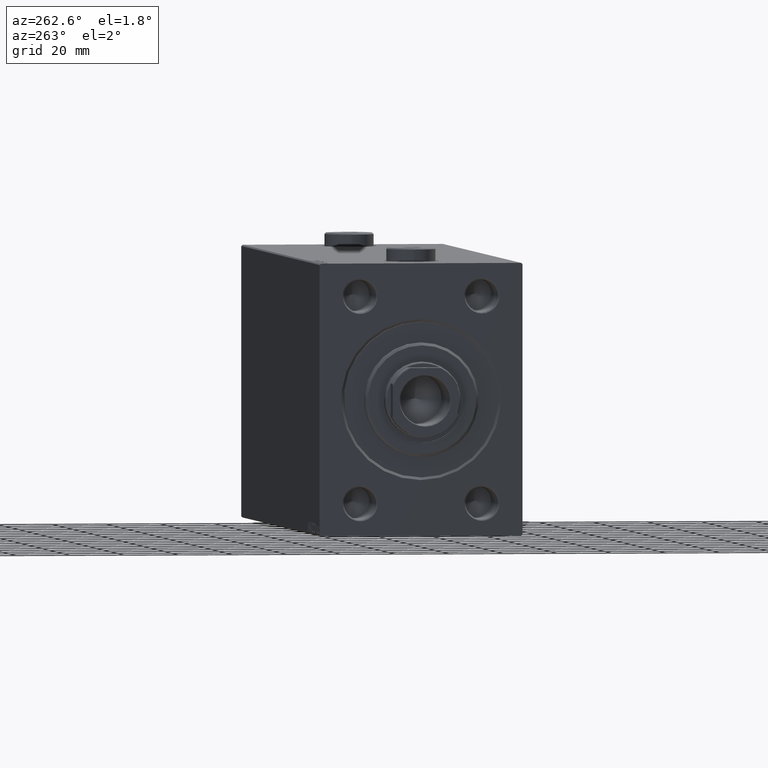
[diagram: clean part render]
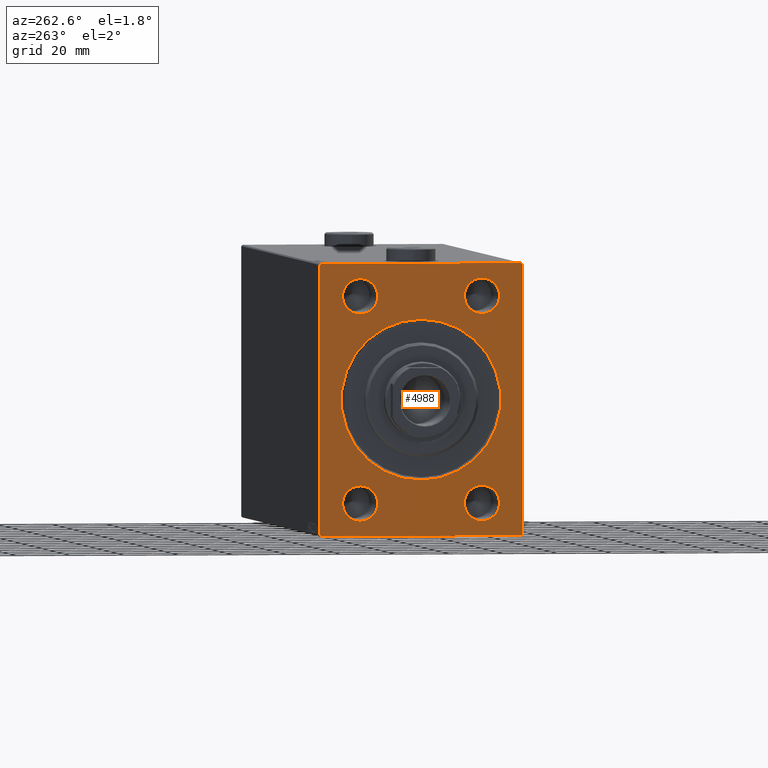
[diagram: same view with one face highlighted and labeled with its STEP entity id]
A machine part, auxiliary view. The second image highlights one B-rep face of the part: STEP entity #4988.
In plain terms, the highlighted planar face has unit normal (1, 0, 0).
Its self-contained STEP definition (entity closure, byte-faithful):
#17 = AXIS2_PLACEMENT_3D ( 'NONE', #35885, #303, #14851 ) ;
#303 = DIRECTION ( 'NONE',  ( 1.000000000000000000, 0.000000000000000000, 0.000000000000000000 ) ) ;
#393 = VERTEX_POINT ( 'NONE', #19849 ) ;
#1120 = DIRECTION ( 'NONE',  ( 0.000000000000000000, 0.000000000000000000, -1.000000000000000000 ) ) ;
#1702 = LINE ( 'NONE', #5158, #45080 ) ;
#1953 = EDGE_CURVE ( 'NONE', #20984, #36791, #40335, .T. ) ;
#2407 = DIRECTION ( 'NONE',  ( 1.000000000000000000, 0.000000000000000000, 0.000000000000000000 ) ) ;
#2893 = CARTESIAN_POINT ( 'NONE',  ( 0.000000000000000000, 37.50000000000000711, -50.00000000000000000 ) ) ;
#2942 = FACE_BOUND ( 'NONE', #19916, .T. ) ;
#2968 = ORIENTED_EDGE ( 'NONE', *, *, #3839, .T. ) ;
#3392 = EDGE_CURVE ( 'NONE', #393, #26474, #37035, .T. ) ;
#3839 = EDGE_CURVE ( 'NONE', #43464, #7391, #30057, .T. ) ;
#3849 = VECTOR ( 'NONE', #31752, 1000.000000000000000 ) ;
#3899 = ORIENTED_EDGE ( 'NONE', *, *, #13125, .T. ) ;
#4307 = CARTESIAN_POINT ( 'NONE',  ( 0.000000000000000000, 0.000000000000000000, 0.000000000000000000 ) ) ;
#4359 = ORIENTED_EDGE ( 'NONE', *, *, #5771, .T. ) ;
#4742 = ORIENTED_EDGE ( 'NONE', *, *, #17010, .F. ) ;
#4839 = CIRCLE ( 'NONE', #15165, 6.500000000000005329 ) ;
#4838 = CARTESIAN_POINT ( 'NONE',  ( 0.000000000000000000, -22.50000000000000000, -44.50000000000001421 ) ) ;
#4844 = VERTEX_POINT ( 'NONE', #43860 ) ;
#4988 = ADVANCED_FACE ( 'NONE', ( #2942, #38068, #41535, #37847, #20287, #31128 ), #13353, .F. ) ;
#5003 = DIRECTION ( 'NONE',  ( 1.000000000000000000, 0.000000000000000000, 0.000000000000000000 ) ) ;
#5158 = CARTESIAN_POINT ( 'NONE',  ( 0.000000000000000000, 37.49999999999999289, 50.00000000000000711 ) ) ;
#5771 = EDGE_CURVE ( 'NONE', #26792, #11224, #28955, .T. ) ;
#6187 = DIRECTION ( 'NONE',  ( 0.000000000000000000, 0.000000000000000000, -1.000000000000000000 ) ) ;
#6314 = EDGE_LOOP ( 'NONE', ( #3899, #39411 ) ) ;
#6409 = CARTESIAN_POINT ( 'NONE',  ( 0.000000000000000000, 0.000000000000000000, 0.000000000000000000 ) ) ;
#6519 = DIRECTION ( 'NONE',  ( 0.000000000000000000, 0.000000000000000000, -1.000000000000000000 ) ) ;
#6733 = CARTESIAN_POINT ( 'NONE',  ( 0.000000000000000000, 22.50000000000000000, 31.49999999999998579 ) ) ;
#6905 = VECTOR ( 'NONE', #11811, 1000.000000000000000 ) ;
#7391 = VERTEX_POINT ( 'NONE', #14429 ) ;
#7405 = CIRCLE ( 'NONE', #17, 29.50000000000000355 ) ;
#9954 = ORIENTED_EDGE ( 'NONE', *, *, #17718, .T. ) ;
#10482 = DIRECTION ( 'NONE',  ( -0.000000000000000000, -0.7071067811865474617, 0.7071067811865474617 ) ) ;
#10502 = AXIS2_PLACEMENT_3D ( 'NONE', #38619, #27110, #23867 ) ;
#11037 = CARTESIAN_POINT ( 'NONE',  ( 0.000000000000000000, -22.50000000000000000, -38.00000000000000711 ) ) ;
#11224 = VERTEX_POINT ( 'NONE', #33646 ) ;
#11742 = CARTESIAN_POINT ( 'NONE',  ( 0.000000000000000000, -22.50000000000000000, 37.99999999999999289 ) ) ;
#11811 = DIRECTION ( 'NONE',  ( -0.000000000000000000, 0.7071067811865328068, 0.7071067811865622277 ) ) ;
#12537 = DIRECTION ( 'NONE',  ( 0.000000000000000000, 0.000000000000000000, -1.000000000000000000 ) ) ;
#13051 = LINE ( 'NONE', #37995, #18236 ) ;
#13125 = EDGE_CURVE ( 'NONE', #4844, #34224, #27250, .T. ) ;
#13353 = PLANE ( 'NONE',  #24929 ) ;
#13674 = AXIS2_PLACEMENT_3D ( 'NONE', #37982, #2407, #17180 ) ;
#13740 = LINE ( 'NONE', #2893, #3849 ) ;
#14427 = CARTESIAN_POINT ( 'NONE',  ( 0.000000000000000000, 3.612708057484691604E-15, -29.50000000000000355 ) ) ;
#14429 = CARTESIAN_POINT ( 'NONE',  ( 0.000000000000000000, -22.50000000000000000, 44.50000000000000000 ) ) ;
#14703 = DIRECTION ( 'NONE',  ( 0.000000000000000000, 1.000000000000000000, 0.000000000000000000 ) ) ;
#14758 = DIRECTION ( 'NONE',  ( 1.000000000000000000, 0.000000000000000000, 0.000000000000000000 ) ) ;
#14765 = CARTESIAN_POINT ( 'NONE',  ( 0.000000000000000000, -37.00000000000002842, -50.00000000000000000 ) ) ;
#14851 = DIRECTION ( 'NONE',  ( 0.000000000000000000, 0.000000000000000000, -1.000000000000000000 ) ) ;
#15165 = AXIS2_PLACEMENT_3D ( 'NONE', #31233, #24745, #6519 ) ;
#15174 = DIRECTION ( 'NONE',  ( 0.000000000000000000, 0.000000000000000000, -1.000000000000000000 ) ) ;
#15596 = CARTESIAN_POINT ( 'NONE',  ( 0.000000000000000000, 37.00000000000002132, 50.00000000000000711 ) ) ;
#15679 = ORIENTED_EDGE ( 'NONE', *, *, #29551, .T. ) ;
#15725 = EDGE_CURVE ( 'NONE', #41195, #17801, #7405, .T. ) ;
#15777 = CARTESIAN_POINT ( 'NONE',  ( 0.000000000000000000, 37.00000000000002132, 50.00000000000000711 ) ) ;
#15954 = AXIS2_PLACEMENT_3D ( 'NONE', #27967, #45530, #41846 ) ;
#16177 = CARTESIAN_POINT ( 'NONE',  ( 0.000000000000000000, 22.50000000000000000, -44.50000000000001421 ) ) ;
#16243 = DIRECTION ( 'NONE',  ( 0.000000000000000000, -1.000000000000000000, -2.775557561562891844E-16 ) ) ;
#16643 = EDGE_CURVE ( 'NONE', #18517, #41503, #38733, .T. ) ;
#16743 = DIRECTION ( 'NONE',  ( 0.000000000000000000, -0.7071067811865524577, -0.7071067811865426878 ) ) ;
#16798 = EDGE_LOOP ( 'NONE', ( #29836, #42025 ) ) ;
#17010 = EDGE_CURVE ( 'NONE', #26792, #36350, #1702, .T. ) ;
#17180 = DIRECTION ( 'NONE',  ( 0.000000000000000000, 0.000000000000000000, -1.000000000000000000 ) ) ;
#17718 = EDGE_CURVE ( 'NONE', #7391, #43464, #39178, .T. ) ;
#17773 = ORIENTED_EDGE ( 'NONE', *, *, #38146, .T. ) ;
#17801 = VERTEX_POINT ( 'NONE', #14427 ) ;
#17874 = AXIS2_PLACEMENT_3D ( 'NONE', #4307, #18644, #32721 ) ;
#18234 = CARTESIAN_POINT ( 'NONE',  ( 0.000000000000000000, -22.50000000000000000, 37.99999999999999289 ) ) ;
#18236 = VECTOR ( 'NONE', #16743, 1000.000000000000000 ) ;
#18517 = VERTEX_POINT ( 'NONE', #14765 ) ;
#18644 = DIRECTION ( 'NONE',  ( 1.000000000000000000, 0.000000000000000000, 0.000000000000000000 ) ) ;
#19275 = AXIS2_PLACEMENT_3D ( 'NONE', #18234, #14758, #21924 ) ;
#19588 = CARTESIAN_POINT ( 'NONE',  ( 0.000000000000000000, 0.000000000000000000, 29.50000000000000355 ) ) ;
#19603 = AXIS2_PLACEMENT_3D ( 'NONE', #11037, #21439, #38995 ) ;
#19711 = EDGE_LOOP ( 'NONE', ( #17773, #37823 ) ) ;
#19849 = CARTESIAN_POINT ( 'NONE',  ( 0.000000000000000000, -37.50000000000000000, 49.49999999999995737 ) ) ;
#19916 = EDGE_LOOP ( 'NONE', ( #36663, #29055 ) ) ;
#20287 = FACE_BOUND ( 'NONE', #16798, .T. ) ;
#20433 = VECTOR ( 'NONE', #12537, 1000.000000000000000 ) ;
#20984 = VERTEX_POINT ( 'NONE', #23681 ) ;
#21439 = DIRECTION ( 'NONE',  ( 1.000000000000000000, 0.000000000000000000, 0.000000000000000000 ) ) ;
#21567 = EDGE_LOOP ( 'NONE', ( #33885, #15679, #4742, #4359, #23376, #40812, #39424, #28408 ) ) ;
#21828 = CIRCLE ( 'NONE', #19603, 6.500000000000005329 ) ;
#21924 = DIRECTION ( 'NONE',  ( 0.000000000000000000, 0.000000000000000000, -1.000000000000000000 ) ) ;
#23376 = ORIENTED_EDGE ( 'NONE', *, *, #24886, .F. ) ;
#23681 = CARTESIAN_POINT ( 'NONE',  ( 0.000000000000000000, 22.50000000000000000, -31.50000000000000000 ) ) ;
#23867 = DIRECTION ( 'NONE',  ( 0.000000000000000000, 0.000000000000000000, -1.000000000000000000 ) ) ;
#24744 = EDGE_CURVE ( 'NONE', #17801, #41195, #32610, .T. ) ;
#24745 = DIRECTION ( 'NONE',  ( 1.000000000000000000, 0.000000000000000000, 0.000000000000000000 ) ) ;
#24886 = EDGE_CURVE ( 'NONE', #29283, #11224, #13740, .T. ) ;
#24929 = AXIS2_PLACEMENT_3D ( 'NONE', #6409, #34375, #6187 ) ;
#25115 = EDGE_CURVE ( 'NONE', #34538, #36984, #28939, .T. ) ;
#25486 = CARTESIAN_POINT ( 'NONE',  ( 0.000000000000000000, -36.99999999999999289, 49.99999999999998579 ) ) ;
#25833 = DIRECTION ( 'NONE',  ( 1.000000000000000000, 0.000000000000000000, 0.000000000000000000 ) ) ;
#26474 = VERTEX_POINT ( 'NONE', #38799 ) ;
#26792 = VERTEX_POINT ( 'NONE', #15596 ) ;
#27110 = DIRECTION ( 'NONE',  ( 1.000000000000000000, 0.000000000000000000, 0.000000000000000000 ) ) ;
#27221 = AXIS2_PLACEMENT_3D ( 'NONE', #40354, #5003, #15174 ) ;
#27250 = CIRCLE ( 'NONE', #27221, 6.500000000000005329 ) ;
#27967 = CARTESIAN_POINT ( 'NONE',  ( 0.000000000000000000, 22.50000000000000000, -38.00000000000000711 ) ) ;
#28044 = LINE ( 'NONE', #42364, #39662 ) ;
#28408 = ORIENTED_EDGE ( 'NONE', *, *, #42391, .T. ) ;
#28939 = CIRCLE ( 'NONE', #10502, 6.500000000000005329 ) ;
#28955 = LINE ( 'NONE', #15777, #32294 ) ;
#29055 = ORIENTED_EDGE ( 'NONE', *, *, #24744, .T. ) ;
#29283 = VERTEX_POINT ( 'NONE', #36598 ) ;
#29411 = DIRECTION ( 'NONE',  ( -0.000000000000000000, 0.7071067811865426878, -0.7071067811865524577 ) ) ;
#29551 = EDGE_CURVE ( 'NONE', #393, #36350, #37228, .T. ) ;
#29742 = CARTESIAN_POINT ( 'NONE',  ( 0.000000000000000000, -22.50000000000000000, 31.49999999999998579 ) ) ;
#29836 = ORIENTED_EDGE ( 'NONE', *, *, #1953, .T. ) ;
#30057 = CIRCLE ( 'NONE', #31530, 6.500000000000005329 ) ;
#31128 = FACE_OUTER_BOUND ( 'NONE', #21567, .T. ) ;
#31233 = CARTESIAN_POINT ( 'NONE',  ( 0.000000000000000000, 22.50000000000000000, 37.99999999999999289 ) ) ;
#31530 = AXIS2_PLACEMENT_3D ( 'NONE', #11742, #25833, #1120 ) ;
#31752 = DIRECTION ( 'NONE',  ( 0.000000000000000000, -1.387778780781445676E-16, 1.000000000000000000 ) ) ;
#31889 = EDGE_LOOP ( 'NONE', ( #9954, #2968 ) ) ;
#32294 = VECTOR ( 'NONE', #29411, 1000.000000000000000 ) ;
#32610 = CIRCLE ( 'NONE', #17874, 29.50000000000000355 ) ;
#32721 = DIRECTION ( 'NONE',  ( 0.000000000000000000, 0.000000000000000000, -1.000000000000000000 ) ) ;
#33646 = CARTESIAN_POINT ( 'NONE',  ( 0.000000000000000000, 37.49999999999999289, 49.50000000000002842 ) ) ;
#33885 = ORIENTED_EDGE ( 'NONE', *, *, #3392, .F. ) ;
#34224 = VERTEX_POINT ( 'NONE', #6733 ) ;
#34254 = EDGE_CURVE ( 'NONE', #34224, #4844, #4839, .T. ) ;
#34375 = DIRECTION ( 'NONE',  ( 1.000000000000000000, 0.000000000000000000, 0.000000000000000000 ) ) ;
#34538 = VERTEX_POINT ( 'NONE', #4838 ) ;
#35885 = CARTESIAN_POINT ( 'NONE',  ( 0.000000000000000000, 0.000000000000000000, 0.000000000000000000 ) ) ;
#36350 = VERTEX_POINT ( 'NONE', #25486 ) ;
#36573 = CARTESIAN_POINT ( 'NONE',  ( 0.000000000000000000, -37.50000000000000000, 49.99999999999998579 ) ) ;
#36598 = CARTESIAN_POINT ( 'NONE',  ( 0.000000000000000000, 37.50000000000000711, -49.50000000000002842 ) ) ;
#36663 = ORIENTED_EDGE ( 'NONE', *, *, #15725, .T. ) ;
#36791 = VERTEX_POINT ( 'NONE', #16177 ) ;
#36984 = VERTEX_POINT ( 'NONE', #37790 ) ;
#37035 = LINE ( 'NONE', #36573, #20433 ) ;
#37228 = LINE ( 'NONE', #43693, #6905 ) ;
#37790 = CARTESIAN_POINT ( 'NONE',  ( 0.000000000000000000, -22.50000000000000000, -31.50000000000000000 ) ) ;
#37823 = ORIENTED_EDGE ( 'NONE', *, *, #25115, .T. ) ;
#37847 = FACE_BOUND ( 'NONE', #6314, .T. ) ;
#37982 = CARTESIAN_POINT ( 'NONE',  ( 0.000000000000000000, 22.50000000000000000, -38.00000000000000711 ) ) ;
#37995 = CARTESIAN_POINT ( 'NONE',  ( 0.000000000000000000, 37.50000000000000711, -49.50000000000002842 ) ) ;
#38068 = FACE_BOUND ( 'NONE', #19711, .T. ) ;
#38146 = EDGE_CURVE ( 'NONE', #36984, #34538, #21828, .T. ) ;
#38619 = CARTESIAN_POINT ( 'NONE',  ( 0.000000000000000000, -22.50000000000000000, -38.00000000000000711 ) ) ;
#38733 = LINE ( 'NONE', #45442, #45056 ) ;
#38799 = CARTESIAN_POINT ( 'NONE',  ( 0.000000000000000000, -37.50000000000000000, -49.50000000000000000 ) ) ;
#38975 = EDGE_CURVE ( 'NONE', #36791, #20984, #42492, .T. ) ;
#38995 = DIRECTION ( 'NONE',  ( 0.000000000000000000, 0.000000000000000000, -1.000000000000000000 ) ) ;
#39178 = CIRCLE ( 'NONE', #19275, 6.500000000000005329 ) ;
#39411 = ORIENTED_EDGE ( 'NONE', *, *, #34254, .T. ) ;
#39424 = ORIENTED_EDGE ( 'NONE', *, *, #16643, .F. ) ;
#39662 = VECTOR ( 'NONE', #10482, 1000.000000000000114 ) ;
#40335 = CIRCLE ( 'NONE', #13674, 6.500000000000005329 ) ;
#40354 = CARTESIAN_POINT ( 'NONE',  ( 0.000000000000000000, 22.50000000000000000, 37.99999999999999289 ) ) ;
#40812 = ORIENTED_EDGE ( 'NONE', *, *, #41525, .T. ) ;
#41195 = VERTEX_POINT ( 'NONE', #19588 ) ;
#41503 = VERTEX_POINT ( 'NONE', #44698 ) ;
#41525 = EDGE_CURVE ( 'NONE', #29283, #41503, #13051, .T. ) ;
#41535 = FACE_BOUND ( 'NONE', #31889, .T. ) ;
#41846 = DIRECTION ( 'NONE',  ( 0.000000000000000000, 0.000000000000000000, -1.000000000000000000 ) ) ;
#42025 = ORIENTED_EDGE ( 'NONE', *, *, #38975, .T. ) ;
#42364 = CARTESIAN_POINT ( 'NONE',  ( 0.000000000000000000, -37.00000000000002842, -50.00000000000000000 ) ) ;
#42391 = EDGE_CURVE ( 'NONE', #18517, #26474, #28044, .T. ) ;
#42492 = CIRCLE ( 'NONE', #15954, 6.500000000000005329 ) ;
#43464 = VERTEX_POINT ( 'NONE', #29742 ) ;
#43693 = CARTESIAN_POINT ( 'NONE',  ( 0.000000000000000000, -37.50000000000000000, 49.49999999999995737 ) ) ;
#43860 = CARTESIAN_POINT ( 'NONE',  ( 0.000000000000000000, 22.50000000000000000, 44.50000000000000000 ) ) ;
#44698 = CARTESIAN_POINT ( 'NONE',  ( 0.000000000000000000, 37.00000000000002842, -50.00000000000000000 ) ) ;
#45056 = VECTOR ( 'NONE', #14703, 1000.000000000000000 ) ;
#45080 = VECTOR ( 'NONE', #16243, 1000.000000000000000 ) ;
#45442 = CARTESIAN_POINT ( 'NONE',  ( 0.000000000000000000, -37.50000000000000000, -50.00000000000000000 ) ) ;
#45530 = DIRECTION ( 'NONE',  ( 1.000000000000000000, 0.000000000000000000, 0.000000000000000000 ) ) ;